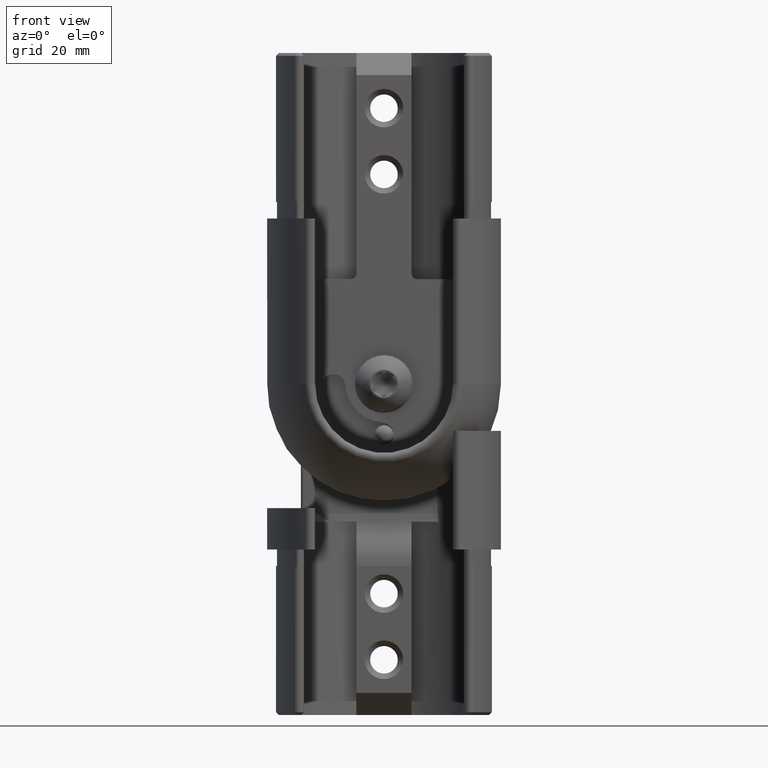
[diagram: clean part render]
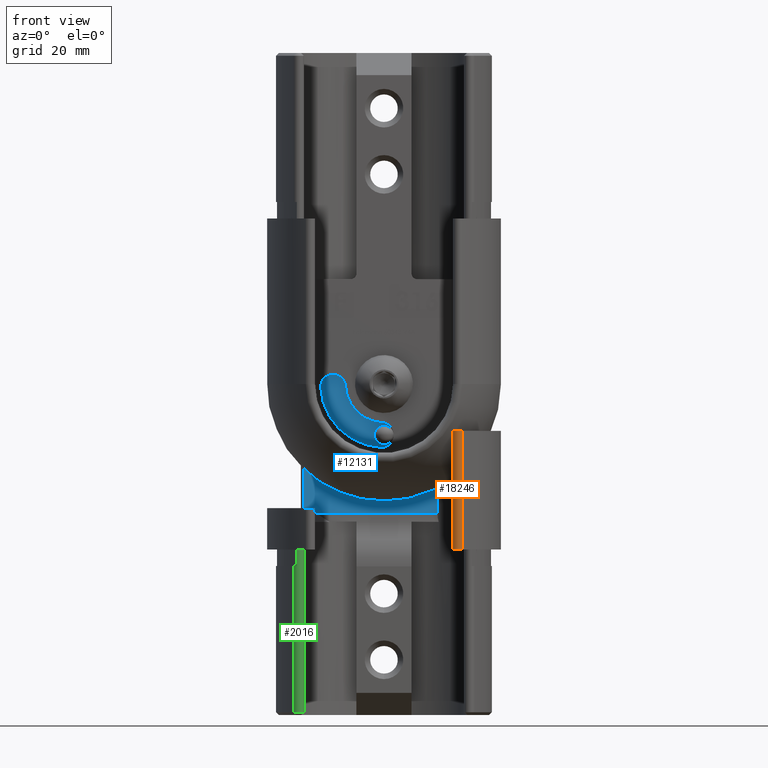
[diagram: same view with three faces highlighted in distinct colors, each labeled with its STEP entity id]
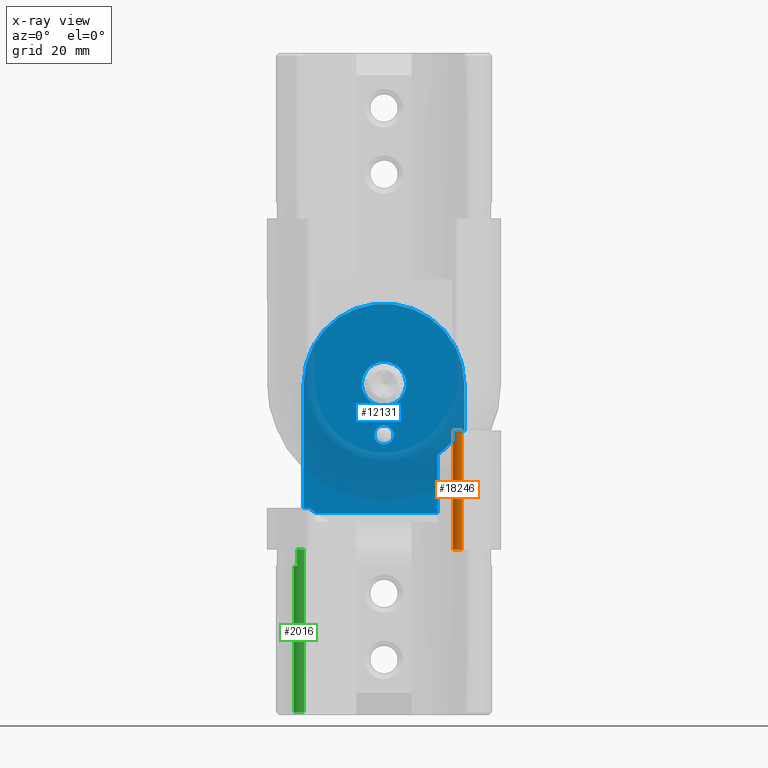
[diagram: x-ray of the same camera — body ghosted, the three highlighted faces saturated]
A machine part, front view with three faces highlighted in distinct colors.
The next image is the same camera in x-ray (body ghosted, the three faces saturated) — at least one of them is partly hidden behind the body in this view.
Their STEP definitions:

[orange] entity #18246 — the highlighted cylindrical surface (edge-blend (fillet) strip) has radius 1 mm, axis along (0, 0, -1).
#78 = EDGE_CURVE ( 'NONE', #19838, #4492, #15310, .T. ) ;
#2744 = CARTESIAN_POINT ( 'NONE',  ( -12.51122933140363200, -15.19314630696417700, -21.34453249328353400 ) ) ;
#2979 = CARTESIAN_POINT ( 'NONE',  ( -12.50000000000000200, -15.11457296441621900, -21.19208287925838600 ) ) ;
#3809 = ORIENTED_EDGE ( 'NONE', *, *, #8874, .T. ) ;
#4429 = CARTESIAN_POINT ( 'NONE',  ( -12.52894658460651700, -15.26517269735513700, -21.50000000000000000 ) ) ;
#4492 = VERTEX_POINT ( 'NONE', #6503 ) ;
#4516 = EDGE_CURVE ( 'NONE', #6956, #18271, #8514, .T. ) ;
#4637 = CIRCLE ( 'NONE', #7978, 0.9999999999999991100 ) ;
#4858 = CARTESIAN_POINT ( 'NONE',  ( -12.50000000000000200, -15.02631025900903000, -21.04399642697705300 ) ) ;
#4870 = AXIS2_PLACEMENT_3D ( 'NONE', #15390, #13684, #23044 ) ;
#5747 = CARTESIAN_POINT ( 'NONE',  ( -13.50000000000000200, -15.02631025900903000, 0.0000000000000000000 ) ) ;
#6133 = DIRECTION ( 'NONE',  ( -1.000000000000000000, 0.0000000000000000000, 0.0000000000000000000 ) ) ;
#6248 = DIRECTION ( 'NONE',  ( 0.0000000000000000000, 0.0000000000000000000, 1.000000000000000000 ) ) ;
#6503 = CARTESIAN_POINT ( 'NONE',  ( -12.50000000000000200, -15.02631025900903000, -21.04399642697705300 ) ) ;
#6956 = VERTEX_POINT ( 'NONE', #22098 ) ;
#7521 = CIRCLE ( 'NONE', #7971, 0.9999999999999991100 ) ;
#7580 = CYLINDRICAL_SURFACE ( 'NONE', #4870, 0.9999999999999991100 ) ;
#7971 = AXIS2_PLACEMENT_3D ( 'NONE', #5747, #18730, #6133 ) ;
#7978 = AXIS2_PLACEMENT_3D ( 'NONE', #10102, #19335, #17715 ) ;
#8054 = CARTESIAN_POINT ( 'NONE',  ( -14.16831683168318000, -15.77018700450451600, -30.00000000000000000 ) ) ;
#8366 = CARTESIAN_POINT ( 'NONE',  ( -12.52894658460651700, -15.26517269735513700, -21.50000000000000000 ) ) ;
#8514 = LINE ( 'NONE', #8054, #16637 ) ;
#8874 = EDGE_CURVE ( 'NONE', #4492, #8933, #20493, .T. ) ;
#8933 = VERTEX_POINT ( 'NONE', #18420 ) ;
#10102 = CARTESIAN_POINT ( 'NONE',  ( -13.50000000000000200, -15.02631025900902800, -21.50000000000000000 ) ) ;
#10195 = CARTESIAN_POINT ( 'NONE',  ( -14.16831683168318000, -15.77018700450451600, 0.0000000000000000000 ) ) ;
#10614 = VECTOR ( 'NONE', #10641, 1000.000000000000000 ) ;
#10641 = DIRECTION ( 'NONE',  ( 0.0000000000000000000, 0.0000000000000000000, 1.000000000000000000 ) ) ;
#12504 = ORIENTED_EDGE ( 'NONE', *, *, #78, .T. ) ;
#13684 = DIRECTION ( 'NONE',  ( 0.0000000000000000000, 0.0000000000000000000, 1.000000000000000000 ) ) ;
#14286 = ORIENTED_EDGE ( 'NONE', *, *, #23058, .F. ) ;
#15119 = ORIENTED_EDGE ( 'NONE', *, *, #16684, .F. ) ;
#15310 = B_SPLINE_CURVE_WITH_KNOTS ( 'NONE', 3,
 ( #8366, #2744, #2979, #4858 ),
 .UNSPECIFIED., .F., .F.,
 ( 4, 4 ),
 ( 2.210901265798978800E-007, 0.0005158104883642361000 ),
 .UNSPECIFIED. ) ;
#15390 = CARTESIAN_POINT ( 'NONE',  ( -13.50000000000000200, -15.02631025900903000, -30.00000000000000000 ) ) ;
#16637 = VECTOR ( 'NONE', #6248, 1000.000000000000000 ) ;
#16684 = EDGE_CURVE ( 'NONE', #19838, #6956, #4637, .T. ) ;
#17358 = ORIENTED_EDGE ( 'NONE', *, *, #4516, .F. ) ;
#17715 = DIRECTION ( 'NONE',  ( 0.0000000000000000000, 1.000000000000000000, 0.0000000000000000000 ) ) ;
#18089 = CARTESIAN_POINT ( 'NONE',  ( -12.50000000000000200, -15.02631025900903000, -30.00000000000000000 ) ) ;
#18246 = ADVANCED_FACE ( 'NONE', ( #20935 ), #7580, .T. ) ;
#18271 = VERTEX_POINT ( 'NONE', #10195 ) ;
#18420 = CARTESIAN_POINT ( 'NONE',  ( -12.50000000000000200, -15.02631025900903000, 0.0000000000000000000 ) ) ;
#18730 = DIRECTION ( 'NONE',  ( 0.0000000000000000000, 0.0000000000000000000, 1.000000000000000000 ) ) ;
#19335 = DIRECTION ( 'NONE',  ( 0.0000000000000000000, 1.251002506714043800E-016, -1.000000000000000000 ) ) ;
#19838 = VERTEX_POINT ( 'NONE', #4429 ) ;
#20493 = LINE ( 'NONE', #18089, #10614 ) ;
#20675 = EDGE_LOOP ( 'NONE', ( #15119, #12504, #3809, #14286, #17358 ) ) ;
#20935 = FACE_OUTER_BOUND ( 'NONE', #20675, .T. ) ;
#22098 = CARTESIAN_POINT ( 'NONE',  ( -14.16831683168318200, -15.77018700450451200, -21.50000000000000000 ) ) ;
#23044 = DIRECTION ( 'NONE',  ( 1.000000000000000000, 0.0000000000000000000, 0.0000000000000000000 ) ) ;
#23058 = EDGE_CURVE ( 'NONE', #18271, #8933, #7521, .T. ) ;

[blue] entity #12131 — the highlighted planar face has unit normal (0, 1, 0).
#55 = DIRECTION ( 'NONE',  ( 0.0000000000000000000, 0.0000000000000000000, 1.000000000000000000 ) ) ;
#219 = VERTEX_POINT ( 'NONE', #11441 ) ;
#273 = EDGE_CURVE ( 'NONE', #12966, #6719, #4542, .T. ) ;
#557 = CIRCLE ( 'NONE', #14564, 14.57394936178934200 ) ;
#1317 = CARTESIAN_POINT ( 'NONE',  ( 13.65466953096998600, 14.20000000000000100, -7.499999999999999100 ) ) ;
#2230 = EDGE_CURVE ( 'NONE', #13585, #13585, #11209, .T. ) ;
#2958 = DIRECTION ( 'NONE',  ( -0.0000000000000000000, -1.000000000000000000, -0.0000000000000000000 ) ) ;
#2960 = CARTESIAN_POINT ( 'NONE',  ( -14.57394936178934200, 14.20000000000000800, -21.50000000000000000 ) ) ;
#3036 = CARTESIAN_POINT ( 'NONE',  ( -14.57394936178934800, 14.20000000000000100, -30.00000000000000000 ) ) ;
#3090 = CARTESIAN_POINT ( 'NONE',  ( -9.705668446840732600, 14.20000000000000100, 56.42302876928887700 ) ) ;
#3256 = CARTESIAN_POINT ( 'NONE',  ( -14.57394936178934200, 14.20000000000000100, -30.00000000000000000 ) ) ;
#3336 = ORIENTED_EDGE ( 'NONE', *, *, #24008, .T. ) ;
#3494 = DIRECTION ( 'NONE',  ( 0.0000000000000000000, 0.0000000000000000000, 1.000000000000000000 ) ) ;
#3506 = ORIENTED_EDGE ( 'NONE', *, *, #21613, .F. ) ;
#4068 = VECTOR ( 'NONE', #10924, 1000.000000000000000 ) ;
#4542 = CIRCLE ( 'NONE', #23819, 16.14341971206844700 ) ;
#4750 = VECTOR ( 'NONE', #23336, 1000.000000000000000 ) ;
#5026 = LINE ( 'NONE', #11133, #10560 ) ;
#5919 = ORIENTED_EDGE ( 'NONE', *, *, #2230, .F. ) ;
#6152 = CARTESIAN_POINT ( 'NONE',  ( 14.57394936178933700, 14.20000000000000100, -30.00000000000000000 ) ) ;
#6649 = ORIENTED_EDGE ( 'NONE', *, *, #20330, .T. ) ;
#6719 = VERTEX_POINT ( 'NONE', #15824 ) ;
#7204 = ORIENTED_EDGE ( 'NONE', *, *, #10401, .T. ) ;
#7367 = DIRECTION ( 'NONE',  ( -0.0000000000000000000, -1.000000000000000000, 0.0000000000000000000 ) ) ;
#7414 = EDGE_CURVE ( 'NONE', #18221, #18221, #14715, .T. ) ;
#8697 = VECTOR ( 'NONE', #21994, 1000.000000000000000 ) ;
#9243 = VECTOR ( 'NONE', #16579, 1000.000000000000000 ) ;
#9337 = VECTOR ( 'NONE', #23970, 1000.000000000000000 ) ;
#9453 = DIRECTION ( 'NONE',  ( 0.0000000000000000000, 0.0000000000000000000, 1.000000000000000000 ) ) ;
#9514 = CARTESIAN_POINT ( 'NONE',  ( 0.0000000000000000000, 14.20000000000000100, -26.00000000000000000 ) ) ;
#9753 = CARTESIAN_POINT ( 'NONE',  ( 13.65466953096998600, 14.20000000000000100, -7.499999999999999100 ) ) ;
#9914 = CARTESIAN_POINT ( 'NONE',  ( 12.78369814573704700, 14.20000000000000100, -6.903720244766844000 ) ) ;
#10113 = AXIS2_PLACEMENT_3D ( 'NONE', #14906, #18462, #9453 ) ;
#10401 = EDGE_CURVE ( 'NONE', #17635, #24123, #23092, .T. ) ;
#10560 = VECTOR ( 'NONE', #13060, 1000.000000000000000 ) ;
#10659 = AXIS2_PLACEMENT_3D ( 'NONE', #23531, #16199, #12388 ) ;
#10700 = CARTESIAN_POINT ( 'NONE',  ( -15.74166446091390300, 14.20000000000000800, -21.50000000000000000 ) ) ;
#10912 = CARTESIAN_POINT ( 'NONE',  ( 0.0000000000000000000, 14.20000000000000100, -20.74999999999999600 ) ) ;
#10916 = EDGE_CURVE ( 'NONE', #24123, #19953, #5026, .T. ) ;
#10924 = DIRECTION ( 'NONE',  ( 0.0000000000000000000, 0.0000000000000000000, -1.000000000000000000 ) ) ;
#10999 = CARTESIAN_POINT ( 'NONE',  ( 14.57394936178934200, 14.20000000000000100, -7.499999999999999100 ) ) ;
#11133 = CARTESIAN_POINT ( 'NONE',  ( 0.0000000000000000000, 14.20000000000000100, -7.499999999999999100 ) ) ;
#11209 = CIRCLE ( 'NONE', #20711, 1.750000000000001600 ) ;
#11283 = CARTESIAN_POINT ( 'NONE',  ( -5.806758582743424700E-015, 14.20000000000000100, -30.00000000000000000 ) ) ;
#11441 = CARTESIAN_POINT ( 'NONE',  ( 12.34264274680131400, 14.20000000000000100, -6.614378277667488400 ) ) ;
#11610 = LINE ( 'NONE', #10700, #8697 ) ;
#11785 = ORIENTED_EDGE ( 'NONE', *, *, #14635, .T. ) ;
#12131 = ADVANCED_FACE ( 'NONE', ( #20701, #18940, #20124 ), #12839, .F. ) ;
#12388 = DIRECTION ( 'NONE',  ( 0.0000000000000000000, 0.0000000000000000000, 1.000000000000000000 ) ) ;
#12736 = LINE ( 'NONE', #3090, #9243 ) ;
#12839 = PLANE ( 'NONE',  #10113 ) ;
#12966 = VERTEX_POINT ( 'NONE', #23094 ) ;
#13009 = VERTEX_POINT ( 'NONE', #19486 ) ;
#13060 = DIRECTION ( 'NONE',  ( -1.000000000000000000, 0.0000000000000000000, 0.0000000000000000000 ) ) ;
#13411 = LINE ( 'NONE', #3256, #4068 ) ;
#13585 = VERTEX_POINT ( 'NONE', #20796 ) ;
#14420 = EDGE_CURVE ( 'NONE', #18861, #20013, #13411, .T. ) ;
#14564 = AXIS2_PLACEMENT_3D ( 'NONE', #11283, #7367, #55 ) ;
#14635 = EDGE_CURVE ( 'NONE', #19953, #219, #21085, .T. ) ;
#14715 = CIRCLE ( 'NONE', #10659, 4.000000000000000000 ) ;
#14864 = LINE ( 'NONE', #20390, #9337 ) ;
#14906 = CARTESIAN_POINT ( 'NONE',  ( 0.0000000000000000000, 14.20000000000000100, 0.0000000000000000000 ) ) ;
#15408 = EDGE_LOOP ( 'NONE', ( #22431, #7204, #17981, #11785, #6649, #3336, #23834, #3506, #17589 ) ) ;
#15523 = EDGE_LOOP ( 'NONE', ( #19446 ) ) ;
#15824 = CARTESIAN_POINT ( 'NONE',  ( -13.72443077143821100, 14.20000000000001000, -21.50000000000000000 ) ) ;
#16199 = DIRECTION ( 'NONE',  ( -0.0000000000000000000, -1.000000000000000000, 0.0000000000000000000 ) ) ;
#16579 = DIRECTION ( 'NONE',  ( 0.0000000000000000000, 1.251002506714043800E-016, -1.000000000000000000 ) ) ;
#17041 = EDGE_LOOP ( 'NONE', ( #5919 ) ) ;
#17589 = ORIENTED_EDGE ( 'NONE', *, *, #14420, .T. ) ;
#17635 = VERTEX_POINT ( 'NONE', #6152 ) ;
#17981 = ORIENTED_EDGE ( 'NONE', *, *, #10916, .T. ) ;
#17982 = CARTESIAN_POINT ( 'NONE',  ( 0.0000000000000000000, 14.19999999999999800, -30.00000000000000000 ) ) ;
#18221 = VERTEX_POINT ( 'NONE', #9514 ) ;
#18462 = DIRECTION ( 'NONE',  ( 0.0000000000000000000, 1.000000000000000000, -0.0000000000000000000 ) ) ;
#18861 = VERTEX_POINT ( 'NONE', #2960 ) ;
#18930 = CARTESIAN_POINT ( 'NONE',  ( 13.22081557977330300, 14.20000000000000100, -7.199282622929120000 ) ) ;
#18940 = FACE_BOUND ( 'NONE', #15523, .T. ) ;
#19446 = ORIENTED_EDGE ( 'NONE', *, *, #7414, .F. ) ;
#19486 = CARTESIAN_POINT ( 'NONE',  ( -9.705668446840732600, 14.20000000000001000, -6.614378277661474600 ) ) ;
#19560 = CARTESIAN_POINT ( 'NONE',  ( 14.57394936178934200, 14.20000000000000100, -7.500000000000000000 ) ) ;
#19953 = VERTEX_POINT ( 'NONE', #1317 ) ;
#20013 = VERTEX_POINT ( 'NONE', #3036 ) ;
#20124 = FACE_OUTER_BOUND ( 'NONE', #15408, .T. ) ;
#20330 = EDGE_CURVE ( 'NONE', #219, #13009, #14864, .T. ) ;
#20390 = CARTESIAN_POINT ( 'NONE',  ( 0.0000000000000000000, 14.20000000000000100, -6.614378277661477200 ) ) ;
#20701 = FACE_BOUND ( 'NONE', #17041, .T. ) ;
#20711 = AXIS2_PLACEMENT_3D ( 'NONE', #10912, #23917, #3494 ) ;
#20796 = CARTESIAN_POINT ( 'NONE',  ( 0.0000000000000000000, 14.20000000000000100, -18.99999999999999600 ) ) ;
#20963 = EDGE_CURVE ( 'NONE', #20013, #17635, #557, .T. ) ;
#21085 = B_SPLINE_CURVE_WITH_KNOTS ( 'NONE', 3,
 ( #9753, #18930, #9914, #22931 ),
 .UNSPECIFIED., .F., .F.,
 ( 4, 4 ),
 ( 0.0000000000000000000, 0.001582270340283439000 ),
 .UNSPECIFIED. ) ;
#21583 = DIRECTION ( 'NONE',  ( 0.0000000000000000000, 0.0000000000000000000, -1.000000000000000000 ) ) ;
#21613 = EDGE_CURVE ( 'NONE', #18861, #6719, #11610, .T. ) ;
#21994 = DIRECTION ( 'NONE',  ( 1.000000000000000000, 5.747927838031133200E-016, 0.0000000000000000000 ) ) ;
#22431 = ORIENTED_EDGE ( 'NONE', *, *, #20963, .T. ) ;
#22931 = CARTESIAN_POINT ( 'NONE',  ( 12.34264274680131400, 14.20000000000000100, -6.614378277667488400 ) ) ;
#23092 = LINE ( 'NONE', #19560, #4750 ) ;
#23094 = CARTESIAN_POINT ( 'NONE',  ( -9.705668446840741500, 14.19999999999999800, -17.09999999999999800 ) ) ;
#23336 = DIRECTION ( 'NONE',  ( -0.0000000000000000000, -0.0000000000000000000, 1.000000000000000000 ) ) ;
#23531 = CARTESIAN_POINT ( 'NONE',  ( 0.0000000000000000000, 14.20000000000000100, -30.00000000000000000 ) ) ;
#23819 = AXIS2_PLACEMENT_3D ( 'NONE', #17982, #2958, #21583 ) ;
#23834 = ORIENTED_EDGE ( 'NONE', *, *, #273, .T. ) ;
#23917 = DIRECTION ( 'NONE',  ( -0.0000000000000000000, -1.000000000000000000, 0.0000000000000000000 ) ) ;
#23970 = DIRECTION ( 'NONE',  ( -1.000000000000000000, 0.0000000000000000000, 0.0000000000000000000 ) ) ;
#24008 = EDGE_CURVE ( 'NONE', #13009, #12966, #12736, .T. ) ;
#24123 = VERTEX_POINT ( 'NONE', #10999 ) ;

[green] entity #2016 — the highlighted cylindrical surface (edge-blend (fillet) strip) has radius 1 mm, axis along (0, -0, 1).
#483 = LINE ( 'NONE', #21793, #19680 ) ;
#585 = CARTESIAN_POINT ( 'NONE',  ( 15.81614436302431600, -11.32042744281213200, 1.500000000000000400 ) ) ;
#665 = ORIENTED_EDGE ( 'NONE', *, *, #16474, .F. ) ;
#1769 = DIRECTION ( 'NONE',  ( 0.0000000000000000000, 0.0000000000000000000, -1.000000000000000000 ) ) ;
#2016 = ADVANCED_FACE ( 'NONE', ( #2157 ), #21360, .T. ) ;
#2157 = FACE_OUTER_BOUND ( 'NONE', #22000, .T. ) ;
#2301 = CARTESIAN_POINT ( 'NONE',  ( 14.49999999999999800, -10.37171634783750700, 0.0000000000000000000 ) ) ;
#2643 = CARTESIAN_POINT ( 'NONE',  ( 15.50000000000000000, -10.37171634783750700, 2.999999999999999100 ) ) ;
#3274 = VERTEX_POINT ( 'NONE', #11528 ) ;
#3578 = CARTESIAN_POINT ( 'NONE',  ( 15.81614436302432300, -11.32042744281211800, 2.999999999999999100 ) ) ;
#4342 = CARTESIAN_POINT ( 'NONE',  ( 16.33109919571045800, -10.92784054879394000, 30.00000000000000000 ) ) ;
#4634 = VECTOR ( 'NONE', #13786, 1000.000000000000000 ) ;
#5283 = ORIENTED_EDGE ( 'NONE', *, *, #6450, .T. ) ;
#5512 = LINE ( 'NONE', #4342, #4634 ) ;
#5592 = VERTEX_POINT ( 'NONE', #14929 ) ;
#5799 = VERTEX_POINT ( 'NONE', #2301 ) ;
#5834 = AXIS2_PLACEMENT_3D ( 'NONE', #22826, #13553, #19064 ) ;
#6227 = DIRECTION ( 'NONE',  ( -0.0000000000000000000, -0.0000000000000000000, -1.000000000000000000 ) ) ;
#6403 = AXIS2_PLACEMENT_3D ( 'NONE', #20375, #1769, #16309 ) ;
#6450 = EDGE_CURVE ( 'NONE', #3274, #5799, #483, .T. ) ;
#6677 = DIRECTION ( 'NONE',  ( -1.000000000000000000, 0.0000000000000000000, 0.0000000000000000000 ) ) ;
#6753 = DIRECTION ( 'NONE',  ( -0.0000000000000000000, -0.0000000000000000000, -1.000000000000000000 ) ) ;
#9029 = LINE ( 'NONE', #585, #10474 ) ;
#9963 = AXIS2_PLACEMENT_3D ( 'NONE', #2643, #6227, #12089 ) ;
#10293 = AXIS2_PLACEMENT_3D ( 'NONE', #19827, #6753, #6677 ) ;
#10467 = CIRCLE ( 'NONE', #5834, 1.000000000000000900 ) ;
#10474 = VECTOR ( 'NONE', #20841, 1000.000000000000000 ) ;
#11528 = CARTESIAN_POINT ( 'NONE',  ( 14.49999999999999800, -10.37171634783750700, 29.49999999999999600 ) ) ;
#12089 = DIRECTION ( 'NONE',  ( -1.000000000000000000, 0.0000000000000000000, 0.0000000000000000000 ) ) ;
#12851 = VERTEX_POINT ( 'NONE', #15132 ) ;
#13281 = EDGE_CURVE ( 'NONE', #20050, #19704, #17466, .T. ) ;
#13553 = DIRECTION ( 'NONE',  ( 0.0000000000000000000, 0.0000000000000000000, 1.000000000000000000 ) ) ;
#13786 = DIRECTION ( 'NONE',  ( -0.0000000000000000000, -0.0000000000000000000, -1.000000000000000000 ) ) ;
#14346 = ORIENTED_EDGE ( 'NONE', *, *, #13281, .F. ) ;
#14481 = CIRCLE ( 'NONE', #6403, 1.000000000000000900 ) ;
#14929 = CARTESIAN_POINT ( 'NONE',  ( 15.81614436302431900, -11.32042744281212300, 0.0000000000000000000 ) ) ;
#15132 = CARTESIAN_POINT ( 'NONE',  ( 16.33109919571045800, -10.92784054879394000, 29.49999999999999600 ) ) ;
#16309 = DIRECTION ( 'NONE',  ( 1.000000000000000000, 1.734723475976805500E-015, 0.0000000000000000000 ) ) ;
#16474 = EDGE_CURVE ( 'NONE', #19704, #5592, #9029, .T. ) ;
#16664 = ORIENTED_EDGE ( 'NONE', *, *, #22907, .T. ) ;
#16921 = CARTESIAN_POINT ( 'NONE',  ( 16.33109919571045800, -10.92784054879394000, 3.000000000000000400 ) ) ;
#17466 = CIRCLE ( 'NONE', #9963, 1.000000000000000900 ) ;
#19064 = DIRECTION ( 'NONE',  ( -1.000000000000000000, 0.0000000000000000000, 0.0000000000000000000 ) ) ;
#19680 = VECTOR ( 'NONE', #19902, 1000.000000000000000 ) ;
#19704 = VERTEX_POINT ( 'NONE', #3578 ) ;
#19827 = CARTESIAN_POINT ( 'NONE',  ( 15.50000000000000000, -10.37171634783750700, 30.00000000000000000 ) ) ;
#19902 = DIRECTION ( 'NONE',  ( -0.0000000000000000000, -0.0000000000000000000, -1.000000000000000000 ) ) ;
#20050 = VERTEX_POINT ( 'NONE', #16921 ) ;
#20375 = CARTESIAN_POINT ( 'NONE',  ( 15.50000000000000000, -10.37171634783750700, 29.49999999999999600 ) ) ;
#20575 = EDGE_CURVE ( 'NONE', #5799, #5592, #10467, .T. ) ;
#20841 = DIRECTION ( 'NONE',  ( -0.0000000000000000000, -0.0000000000000000000, -1.000000000000000000 ) ) ;
#21360 = CYLINDRICAL_SURFACE ( 'NONE', #10293, 1.000000000000000900 ) ;
#21468 = EDGE_CURVE ( 'NONE', #12851, #20050, #5512, .T. ) ;
#21576 = ORIENTED_EDGE ( 'NONE', *, *, #21468, .F. ) ;
#21793 = CARTESIAN_POINT ( 'NONE',  ( 14.49999999999999800, -10.37171634783750700, 30.00000000000000000 ) ) ;
#22000 = EDGE_LOOP ( 'NONE', ( #665, #14346, #21576, #16664, #5283, #22405 ) ) ;
#22405 = ORIENTED_EDGE ( 'NONE', *, *, #20575, .T. ) ;
#22826 = CARTESIAN_POINT ( 'NONE',  ( 15.50000000000000000, -10.37171634783750700, 0.0000000000000000000 ) ) ;
#22907 = EDGE_CURVE ( 'NONE', #12851, #3274, #14481, .T. ) ;